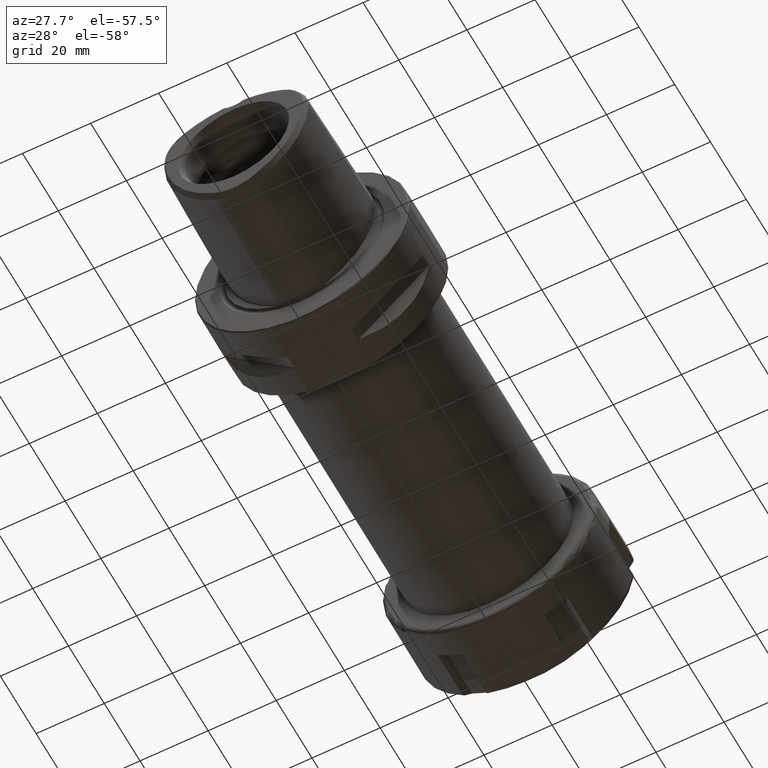
[diagram: clean part render]
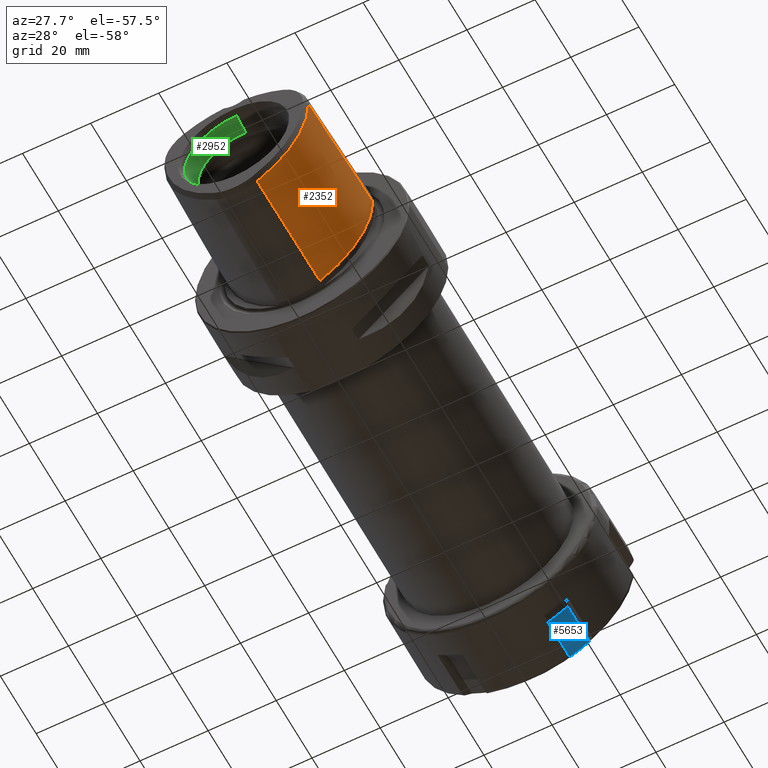
[diagram: same view with three faces highlighted in distinct colors, each labeled with its STEP entity id]
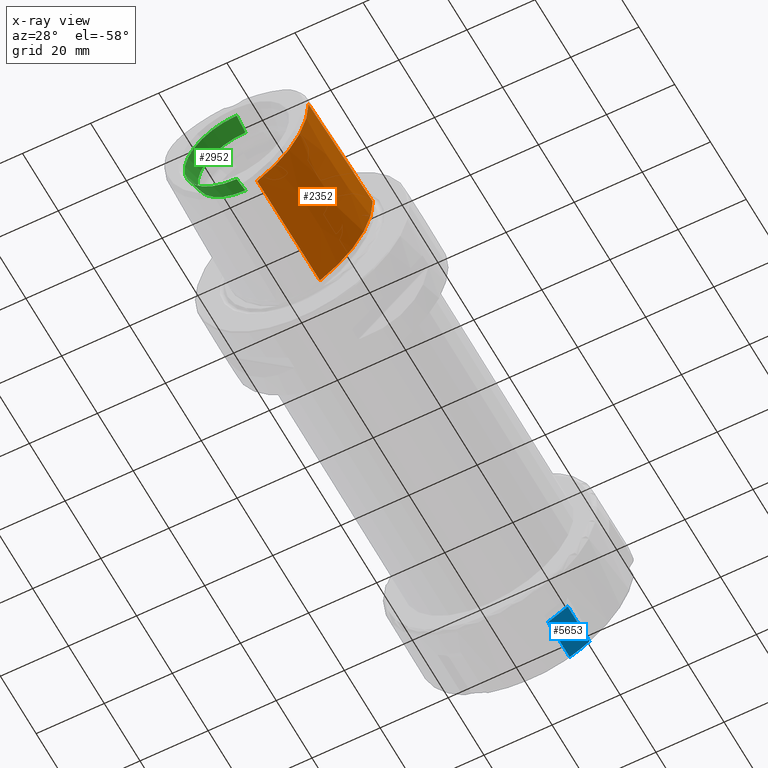
[diagram: x-ray of the same camera — body ghosted, the three highlighted faces saturated]
A machine part, auxiliary view with three faces highlighted in distinct colors.
The next image is the same camera in x-ray (body ghosted, the three faces saturated) — at least one of them is partly hidden behind the body in this view.
Their STEP definitions:

[orange] entity #2352 — the highlighted conical surface has half-angle 1.439 deg.
#316=CARTESIAN_POINT('',(6.485179054191E0,-2.199936910936E0,-2.168240187923E1));
#392=CARTESIAN_POINT('',(-9.049742261193E0,-2.199936910936E0,5.224871130596E0));
#393=DIRECTION('',(0.E0,1.E0,0.E0));
#394=DIRECTION('',(1.E0,0.E0,1.089146095547E-14));
#395=AXIS2_PLACEMENT_3D('',#392,#393,#394);
#397=DIRECTION('',(-1.255777780595E-2,-9.996845546803E-1,2.175070919006E-2));
#398=VECTOR('',#397,3.431088629756E1);
#399=CARTESIAN_POINT('',(6.485179054191E0,-2.199936910936E0,-2.168240187923E1));
#400=LINE('',#399,#398);
#401=CARTESIAN_POINT('',(-9.049742261193E0,-3.65E1,5.224871130596E0));
#402=DIRECTION('',(0.E0,1.E0,0.E0));
#403=DIRECTION('',(1.E0,0.E0,1.090813828053E-14));
#404=AXIS2_PLACEMENT_3D('',#401,#402,#403);
#406=DIRECTION('',(2.511555561190E-2,9.996845546803E-1,-1.511754003107E-14));
#407=VECTOR('',#406,3.431088629756E1);
#408=CARTESIAN_POINT('',(2.115836339667E1,-3.65E1,5.224871130597E0));
#409=LINE('',#408,#407);
#735=CARTESIAN_POINT('',(2.202010036957E1,-2.199936910936E0,5.224871130596E0));
#1958=VERTEX_POINT('',#316);
#1961=VERTEX_POINT('',#735);
#2027=CARTESIAN_POINT('',(2.115836339667E1,-3.65E1,5.224871130597E0));
#2029=VERTEX_POINT('',#2027);
#2030=CARTESIAN_POINT('',(6.054310567741E0,-3.65E1,-2.093611576932E1));
#2031=VERTEX_POINT('',#2030);
#2339=CARTESIAN_POINT('',(-9.049742261193E0,-1.934996845547E1,
5.224871130596E0));
#2340=DIRECTION('',(0.E0,1.E0,0.E0));
#2341=DIRECTION('',(1.E0,0.E0,0.E0));
#2342=AXIS2_PLACEMENT_3D('',#2339,#2340,#2341);
#2343=CONICAL_SURFACE('',#2342,3.063897414432E1,1.439166666E0);
#2344=ORIENTED_EDGE('',*,*,#2331,.T.);
#2345=ORIENTED_EDGE('',*,*,#2320,.T.);
#2347=ORIENTED_EDGE('',*,*,#2346,.F.);
#2349=ORIENTED_EDGE('',*,*,#2348,.T.);
#2350=EDGE_LOOP('',(#2344,#2345,#2347,#2349));
#2351=FACE_OUTER_BOUND('',#2350,.F.);
#2352=ADVANCED_FACE('',(#2351),#2343,.T.);
#396=CIRCLE('',#395,3.106984263077E1);
#405=CIRCLE('',#404,3.020810565787E1);
#2320=EDGE_CURVE('',#1958,#2031,#400,.T.);
#2331=EDGE_CURVE('',#1961,#1958,#396,.T.);
#2346=EDGE_CURVE('',#2029,#2031,#405,.T.);
#2348=EDGE_CURVE('',#2029,#1961,#409,.T.);

[blue] entity #5653 — the highlighted planar face has unit normal (-0.5, 0, 0.866).
#4139=CARTESIAN_POINT('',(2.351130782476E1,-1.147381489730E1,
-2.657323035877E1));
#4145=CARTESIAN_POINT('',(2.351130782476E1,-1.727618510266E1,
-2.322323035877E1));
#4146=CARTESIAN_POINT('',(2.356105051412E1,-1.663150835835E1,
-2.359543465064E1));
#4147=CARTESIAN_POINT('',(2.362777625606E1,-1.534215754233E1,
-2.433984169135E1));
#4148=CARTESIAN_POINT('',(2.362777583851E1,-1.340782996305E1,
-2.545662623995E1));
#4149=CARTESIAN_POINT('',(2.356105010187E1,-1.211848629883E1,
-2.620102915156E1));
#4150=CARTESIAN_POINT('',(2.351130782476E1,-1.147381489730E1,
-2.657323035877E1));
#4783=CARTESIAN_POINT('',(1.135837661841E1,-1.727618510266E1,
-2.322323035877E1));
#4789=DIRECTION('',(-1.E0,0.E0,0.E0));
#4790=VECTOR('',#4789,1.215293120635E1);
#4791=CARTESIAN_POINT('',(2.351130782476E1,-1.727618510266E1,
-2.322323035877E1));
#4792=LINE('',#4791,#4790);
#4793=DIRECTION('',(0.E0,-8.660254037844E-1,5.E-1));
#4794=VECTOR('',#4793,6.7E0);
#4795=CARTESIAN_POINT('',(1.135837661841E1,-1.147381489730E1,
-2.657323035877E1));
#4796=LINE('',#4795,#4794);
#4797=DIRECTION('',(-1.E0,0.E0,0.E0));
#4798=VECTOR('',#4797,1.215293120635E1);
#4799=CARTESIAN_POINT('',(2.351130782476E1,-1.147381489730E1,
-2.657323035877E1));
#4800=LINE('',#4799,#4798);
#4905=VERTEX_POINT('',#4139);
#4907=VERTEX_POINT('',#4145);
#4916=VERTEX_POINT('',#4783);
#4917=CARTESIAN_POINT('',(1.135837661841E1,-1.147381489730E1,
-2.657323035877E1));
#4918=VERTEX_POINT('',#4917);
#5641=CARTESIAN_POINT('',(2.55E1,-1.147381489730E1,-2.657323035877E1));
#5642=DIRECTION('',(0.E0,5.E-1,8.660254037844E-1));
#5643=DIRECTION('',(0.E0,-8.660254037844E-1,5.E-1));
#5644=AXIS2_PLACEMENT_3D('',#5641,#5642,#5643);
#5645=PLANE('',#5644);
#5646=ORIENTED_EDGE('',*,*,#5632,.T.);
#5647=ORIENTED_EDGE('',*,*,#5621,.F.);
#5648=ORIENTED_EDGE('',*,*,#4962,.T.);
#5650=ORIENTED_EDGE('',*,*,#5649,.T.);
#5651=EDGE_LOOP('',(#5646,#5647,#5648,#5650));
#5652=FACE_OUTER_BOUND('',#5651,.F.);
#5653=ADVANCED_FACE('',(#5652),#5645,.F.);
#4151=B_SPLINE_CURVE_WITH_KNOTS('',3,(#4145,#4146,#4147,#4148,#4149,#4150),
.UNSPECIFIED.,.F.,.F.,(4,1,1,4),(0.E0,3.333333333333E-1,6.666666666667E-1,1.E0),
.UNSPECIFIED.);
#4962=EDGE_CURVE('',#4907,#4905,#4151,.T.);
#5621=EDGE_CURVE('',#4907,#4916,#4792,.T.);
#5632=EDGE_CURVE('',#4918,#4916,#4796,.T.);
#5649=EDGE_CURVE('',#4905,#4918,#4800,.T.);

[green] entity #2952 — the highlighted conical surface has half-angle 15 deg.
#925=CARTESIAN_POINT('',(0.E0,-3.147537645984E1,0.E0));
#926=DIRECTION('',(0.E0,-1.E0,0.E0));
#927=DIRECTION('',(0.E0,0.E0,1.E0));
#928=AXIS2_PLACEMENT_3D('',#925,#926,#927);
#1070=DIRECTION('',(0.E0,-9.659258262891E-1,2.588190451025E-1));
#1071=VECTOR('',#1070,5.072853284009E0);
#1072=CARTESIAN_POINT('',(0.E0,-3.147537645984E1,1.40125E1));
#1073=LINE('',#1072,#1071);
#1074=DIRECTION('',(0.E0,-9.659258262891E-1,-2.588190451025E-1));
#1075=VECTOR('',#1074,5.072853284009E0);
#1076=CARTESIAN_POINT('',(0.E0,-3.147537645984E1,-1.40125E1));
#1077=LINE('',#1076,#1075);
#1091=CARTESIAN_POINT('',(0.E0,-3.637537645984E1,0.E0));
#1092=DIRECTION('',(0.E0,-1.E0,0.E0));
#1093=DIRECTION('',(0.E0,0.E0,1.E0));
#1094=AXIS2_PLACEMENT_3D('',#1091,#1092,#1093);
#1996=CARTESIAN_POINT('',(0.E0,-3.637537645984E1,1.532545104291E1));
#1997=CARTESIAN_POINT('',(0.E0,-3.637537645984E1,-1.532545104291E1));
#1998=VERTEX_POINT('',#1996);
#1999=VERTEX_POINT('',#1997);
#2004=CARTESIAN_POINT('',(0.E0,-3.147537645984E1,1.40125E1));
#2005=CARTESIAN_POINT('',(0.E0,-3.147537645984E1,-1.40125E1));
#2006=VERTEX_POINT('',#2004);
#2007=VERTEX_POINT('',#2005);
#2938=CARTESIAN_POINT('',(0.E0,-3.392537645984E1,0.E0));
#2939=DIRECTION('',(0.E0,-1.E0,0.E0));
#2940=DIRECTION('',(0.E0,0.E0,1.E0));
#2941=AXIS2_PLACEMENT_3D('',#2938,#2939,#2940);
#2942=CONICAL_SURFACE('',#2941,1.466897552146E1,1.5E1);
#2943=ORIENTED_EDGE('',*,*,#2756,.T.);
#2945=ORIENTED_EDGE('',*,*,#2944,.T.);
#2947=ORIENTED_EDGE('',*,*,#2946,.F.);
#2949=ORIENTED_EDGE('',*,*,#2948,.F.);
#2950=EDGE_LOOP('',(#2943,#2945,#2947,#2949));
#2951=FACE_OUTER_BOUND('',#2950,.F.);
#2952=ADVANCED_FACE('',(#2951),#2942,.F.);
#929=CIRCLE('',#928,1.40125E1);
#1095=CIRCLE('',#1094,1.532545104291E1);
#2756=EDGE_CURVE('',#2006,#2007,#929,.T.);
#2944=EDGE_CURVE('',#2007,#1999,#1077,.T.);
#2946=EDGE_CURVE('',#1998,#1999,#1095,.T.);
#2948=EDGE_CURVE('',#2006,#1998,#1073,.T.);